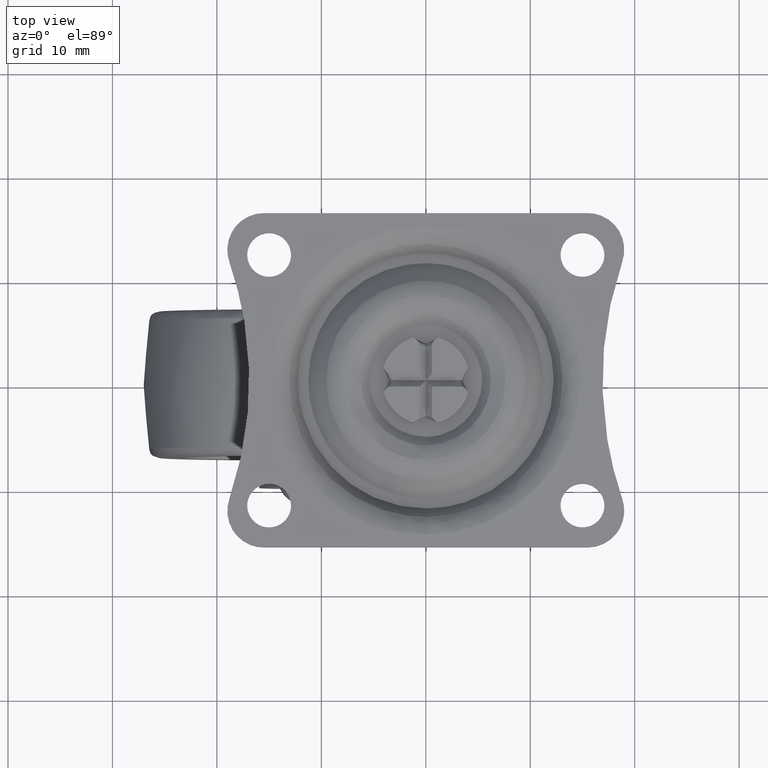
[diagram: clean part render]
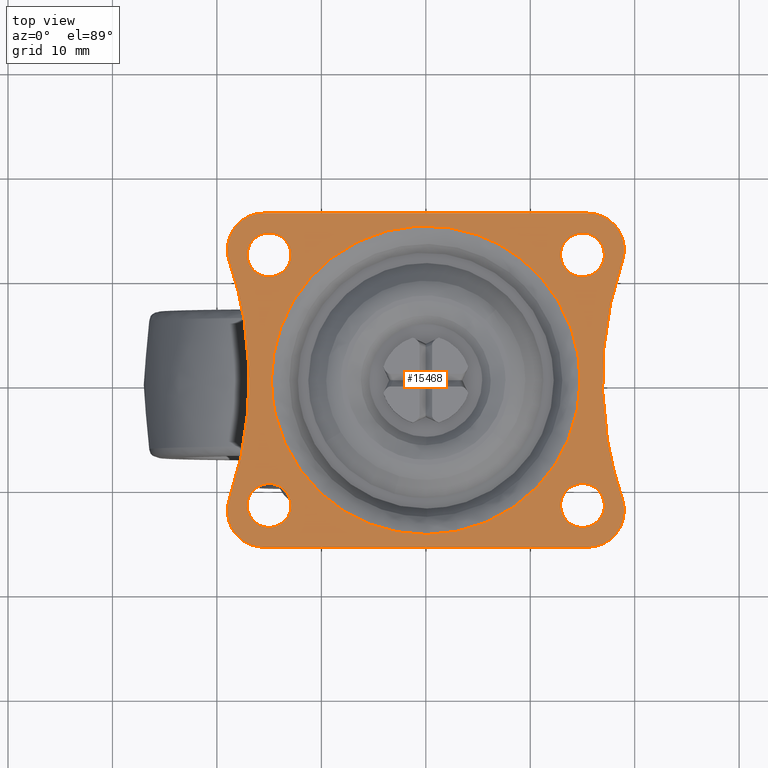
[diagram: same view with one face highlighted and labeled with its STEP entity id]
A machine part, top view. The second image highlights one B-rep face of the part: STEP entity #15468.
In plain terms, the highlighted face is a freeform B-spline surface patch.
Its self-contained STEP definition (entity closure, byte-faithful):
#9984=CARTESIAN_POINT('',(-15.247871892832739,9.914679994642487,1.419714E-017));
#9985=VERTEX_POINT('',#9984);
#9991=CARTESIAN_POINT('',(-12.900000000000000,11.999999999999821,0.0));
#9992=VERTEX_POINT('',#9991);
#9993=CARTESIAN_POINT('',(-15.247871892832734,9.914679994642487,1.419714E-017));
#9994=CARTESIAN_POINT('',(-15.124370651323128,9.899999999999821,0.0));
#9995=CARTESIAN_POINT('',(-15.0,9.899999999999821,0.0));
#9996=CARTESIAN_POINT('',(-12.900000000000002,9.899999999999821,0.0));
#9997=CARTESIAN_POINT('',(-12.900000000000000,11.999999999999821,0.0));
#10005=(BOUNDED_CURVE()B_SPLINE_CURVE(2,(#9993,#9994,#9995,#9996,#9997),.UNSPECIFIED.,.F.,.U.)B_SPLINE_CURVE_WITH_KNOTS((3,2,3),(0.229562473506965,0.250000000000000,0.500000000000000),.UNSPECIFIED.)CURVE()GEOMETRIC_REPRESENTATION_ITEM()RATIONAL_B_SPLINE_CURVE((0.956026754170874,0.976055948323479,1.0,0.707106781186548,1.0))REPRESENTATION_ITEM(''));
#10006=EDGE_CURVE('',#9985,#9992,#10005,.T.);
#10008=CARTESIAN_POINT('',(-14.871798066852261,14.096083076678120,1.040834E-017));
#10009=VERTEX_POINT('',#10008);
#10010=CARTESIAN_POINT('',(-12.900000000000000,11.999999999999821,0.0));
#10011=CARTESIAN_POINT('',(-12.900000000000002,13.975482740266576,0.0));
#10012=CARTESIAN_POINT('',(-14.871798066852261,14.096083076678122,1.040834E-017));
#10020=(BOUNDED_CURVE()B_SPLINE_CURVE(2,(#10010,#10011,#10012),.UNSPECIFIED.,.F.,.U.)B_SPLINE_CURVE_WITH_KNOTS((3,3),(0.500000000000000,0.739332962221464),.UNSPECIFIED.)CURVE()GEOMETRIC_REPRESENTATION_ITEM()RATIONAL_B_SPLINE_CURVE((1.0,0.719603993307189,0.976072041629256))REPRESENTATION_ITEM(''));
#10021=EDGE_CURVE('',#9992,#10009,#10020,.T.);
#10095=CARTESIAN_POINT('',(-17.100000000000001,11.999999999999821,0.0));
#10096=VERTEX_POINT('',#10095);
#10097=CARTESIAN_POINT('',(-14.871798066852257,14.096083076678120,1.040834E-017));
#10098=CARTESIAN_POINT('',(-14.935839196948066,14.099999999999818,0.0));
#10099=CARTESIAN_POINT('',(-15.0,14.099999999999820,0.0));
#10100=CARTESIAN_POINT('',(-17.099999999999994,14.099999999999818,0.0));
#10101=CARTESIAN_POINT('',(-17.100000000000001,11.999999999999821,0.0));
#10109=(BOUNDED_CURVE()B_SPLINE_CURVE(2,(#10097,#10098,#10099,#10100,#10101),.UNSPECIFIED.,.F.,.U.)B_SPLINE_CURVE_WITH_KNOTS((3,2,3),(0.739332962221464,0.750000000000000,1.0),.UNSPECIFIED.)CURVE()GEOMETRIC_REPRESENTATION_ITEM()RATIONAL_B_SPLINE_CURVE((0.976072041629257,0.987502787879360,1.0,0.707106781186548,1.0))REPRESENTATION_ITEM(''));
#10110=EDGE_CURVE('',#10009,#10096,#10109,.T.);
#10112=CARTESIAN_POINT('',(-17.100000000000001,11.999999999999821,0.0));
#10113=CARTESIAN_POINT('',(-17.100000000000001,10.134833495598409,0.0));
#10114=CARTESIAN_POINT('',(-15.247871892832741,9.914679994642487,1.419714E-017));
#10122=(BOUNDED_CURVE()B_SPLINE_CURVE(2,(#10112,#10113,#10114),.UNSPECIFIED.,.F.,.U.)B_SPLINE_CURVE_WITH_KNOTS((3,3),(0.0,0.229562473506965),.UNSPECIFIED.)CURVE()GEOMETRIC_REPRESENTATION_ITEM()RATIONAL_B_SPLINE_CURVE((1.0,0.731050832863068,0.956026754170874))REPRESENTATION_ITEM(''));
#10123=EDGE_CURVE('',#10096,#9985,#10122,.T.);
#10170=CARTESIAN_POINT('',(-15.247871892832739,-14.085320005357341,1.419714E-017));
#10171=VERTEX_POINT('',#10170);
#10177=CARTESIAN_POINT('',(-12.900000000000000,-12.0,0.0));
#10178=VERTEX_POINT('',#10177);
#10179=CARTESIAN_POINT('',(-15.247871892832736,-14.085320005357335,1.419714E-017));
#10180=CARTESIAN_POINT('',(-15.124370651323130,-14.099999999999996,0.0));
#10181=CARTESIAN_POINT('',(-15.0,-14.100000000000000,0.0));
#10182=CARTESIAN_POINT('',(-12.900000000000002,-14.100000000000000,0.0));
#10183=CARTESIAN_POINT('',(-12.900000000000000,-12.0,0.0));
#10191=(BOUNDED_CURVE()B_SPLINE_CURVE(2,(#10179,#10180,#10181,#10182,#10183),.UNSPECIFIED.,.F.,.U.)B_SPLINE_CURVE_WITH_KNOTS((3,2,3),(0.229562473506965,0.250000000000000,0.500000000000000),.UNSPECIFIED.)CURVE()GEOMETRIC_REPRESENTATION_ITEM()RATIONAL_B_SPLINE_CURVE((0.956026754170874,0.976055948323479,1.0,0.707106781186548,1.0))REPRESENTATION_ITEM(''));
#10192=EDGE_CURVE('',#10171,#10178,#10191,.T.);
#10194=CARTESIAN_POINT('',(-14.871798066852261,-9.903916923321697,1.387779E-017));
#10195=VERTEX_POINT('',#10194);
#10196=CARTESIAN_POINT('',(-12.900000000000000,-12.0,0.0));
#10197=CARTESIAN_POINT('',(-12.900000000000002,-10.024517259733239,0.0));
#10198=CARTESIAN_POINT('',(-14.871798066852261,-9.903916923321697,1.387779E-017));
#10206=(BOUNDED_CURVE()B_SPLINE_CURVE(2,(#10196,#10197,#10198),.UNSPECIFIED.,.F.,.U.)B_SPLINE_CURVE_WITH_KNOTS((3,3),(0.500000000000000,0.739332962221464),.UNSPECIFIED.)CURVE()GEOMETRIC_REPRESENTATION_ITEM()RATIONAL_B_SPLINE_CURVE((1.0,0.719603993307189,0.976072041629256))REPRESENTATION_ITEM(''));
#10207=EDGE_CURVE('',#10178,#10195,#10206,.T.);
#10281=CARTESIAN_POINT('',(-17.100000000000001,-12.0,0.0));
#10282=VERTEX_POINT('',#10281);
#10283=CARTESIAN_POINT('',(-14.871798066852257,-9.903916923321697,1.387779E-017));
#10284=CARTESIAN_POINT('',(-14.935839196948066,-9.900000000000000,0.0));
#10285=CARTESIAN_POINT('',(-15.0,-9.900000000000000,0.0));
#10286=CARTESIAN_POINT('',(-17.099999999999994,-9.900000000000000,0.0));
#10287=CARTESIAN_POINT('',(-17.100000000000001,-12.0,0.0));
#10295=(BOUNDED_CURVE()B_SPLINE_CURVE(2,(#10283,#10284,#10285,#10286,#10287),.UNSPECIFIED.,.F.,.U.)B_SPLINE_CURVE_WITH_KNOTS((3,2,3),(0.739332962221464,0.750000000000000,1.0),.UNSPECIFIED.)CURVE()GEOMETRIC_REPRESENTATION_ITEM()RATIONAL_B_SPLINE_CURVE((0.976072041629257,0.987502787879360,1.0,0.707106781186548,1.0))REPRESENTATION_ITEM(''));
#10296=EDGE_CURVE('',#10195,#10282,#10295,.T.);
#10298=CARTESIAN_POINT('',(-17.100000000000001,-12.0,0.0));
#10299=CARTESIAN_POINT('',(-17.099999999999998,-13.865166504401410,0.0));
#10300=CARTESIAN_POINT('',(-15.247871892832743,-14.085320005357334,1.419714E-017));
#10308=(BOUNDED_CURVE()B_SPLINE_CURVE(2,(#10298,#10299,#10300),.UNSPECIFIED.,.F.,.U.)B_SPLINE_CURVE_WITH_KNOTS((3,3),(0.0,0.229562473506965),.UNSPECIFIED.)CURVE()GEOMETRIC_REPRESENTATION_ITEM()RATIONAL_B_SPLINE_CURVE((1.0,0.731050832863068,0.956026754170874))REPRESENTATION_ITEM(''));
#10309=EDGE_CURVE('',#10282,#10171,#10308,.T.);
#10356=CARTESIAN_POINT('',(14.752128107167060,-14.085320005357330,1.419714E-017));
#10357=VERTEX_POINT('',#10356);
#10363=CARTESIAN_POINT('',(17.099999999999799,-12.0,0.0));
#10364=VERTEX_POINT('',#10363);
#10365=CARTESIAN_POINT('',(14.752128107167056,-14.085320005357334,1.419714E-017));
#10366=CARTESIAN_POINT('',(14.875629348676672,-14.100000000000001,0.0));
#10367=CARTESIAN_POINT('',(14.999999999999799,-14.100000000000000,0.0));
#10368=CARTESIAN_POINT('',(17.099999999999795,-14.100000000000000,0.0));
#10369=CARTESIAN_POINT('',(17.099999999999799,-12.0,0.0));
#10377=(BOUNDED_CURVE()B_SPLINE_CURVE(2,(#10365,#10366,#10367,#10368,#10369),.UNSPECIFIED.,.F.,.U.)B_SPLINE_CURVE_WITH_KNOTS((3,2,3),(0.229562473506965,0.250000000000000,0.500000000000000),.UNSPECIFIED.)CURVE()GEOMETRIC_REPRESENTATION_ITEM()RATIONAL_B_SPLINE_CURVE((0.956026754170873,0.976055948323479,1.0,0.707106781186548,1.0))REPRESENTATION_ITEM(''));
#10378=EDGE_CURVE('',#10357,#10364,#10377,.T.);
#10380=CARTESIAN_POINT('',(15.128201933147540,-9.903916923321697,1.040834E-017));
#10381=VERTEX_POINT('',#10380);
#10382=CARTESIAN_POINT('',(17.099999999999799,-12.0,0.0));
#10383=CARTESIAN_POINT('',(17.099999999999799,-10.024517259733239,0.0));
#10384=CARTESIAN_POINT('',(15.128201933147540,-9.903916923321697,1.040834E-017));
#10392=(BOUNDED_CURVE()B_SPLINE_CURVE(2,(#10382,#10383,#10384),.UNSPECIFIED.,.F.,.U.)B_SPLINE_CURVE_WITH_KNOTS((3,3),(0.500000000000000,0.739332962221464),.UNSPECIFIED.)CURVE()GEOMETRIC_REPRESENTATION_ITEM()RATIONAL_B_SPLINE_CURVE((1.0,0.719603993307189,0.976072041629256))REPRESENTATION_ITEM(''));
#10393=EDGE_CURVE('',#10364,#10381,#10392,.T.);
#10467=CARTESIAN_POINT('',(12.899999999999800,-12.0,0.0));
#10468=VERTEX_POINT('',#10467);
#10469=CARTESIAN_POINT('',(15.128201933147542,-9.903916923321697,1.040834E-017));
#10470=CARTESIAN_POINT('',(15.064160803051726,-9.900000000000000,0.0));
#10471=CARTESIAN_POINT('',(14.999999999999799,-9.900000000000000,0.0));
#10472=CARTESIAN_POINT('',(12.899999999999800,-9.900000000000000,0.0));
#10473=CARTESIAN_POINT('',(12.899999999999800,-12.0,0.0));
#10481=(BOUNDED_CURVE()B_SPLINE_CURVE(2,(#10469,#10470,#10471,#10472,#10473),.UNSPECIFIED.,.F.,.U.)B_SPLINE_CURVE_WITH_KNOTS((3,2,3),(0.739332962221464,0.750000000000000,1.0),.UNSPECIFIED.)CURVE()GEOMETRIC_REPRESENTATION_ITEM()RATIONAL_B_SPLINE_CURVE((0.976072041629257,0.987502787879359,1.0,0.707106781186548,1.0))REPRESENTATION_ITEM(''));
#10482=EDGE_CURVE('',#10381,#10468,#10481,.T.);
#10484=CARTESIAN_POINT('',(12.899999999999800,-12.0,0.0));
#10485=CARTESIAN_POINT('',(12.899999999999800,-13.865166504401401,0.0));
#10486=CARTESIAN_POINT('',(14.752128107167056,-14.085320005357334,1.419714E-017));
#10494=(BOUNDED_CURVE()B_SPLINE_CURVE(2,(#10484,#10485,#10486),.UNSPECIFIED.,.F.,.U.)B_SPLINE_CURVE_WITH_KNOTS((3,3),(0.0,0.229562473506965),.UNSPECIFIED.)CURVE()GEOMETRIC_REPRESENTATION_ITEM()RATIONAL_B_SPLINE_CURVE((1.0,0.731050832863069,0.956026754170873))REPRESENTATION_ITEM(''));
#10495=EDGE_CURVE('',#10468,#10357,#10494,.T.);
#10542=CARTESIAN_POINT('',(14.752128107167060,9.914679994642487,1.419714E-017));
#10543=VERTEX_POINT('',#10542);
#10549=CARTESIAN_POINT('',(17.099999999999799,11.999999999999821,0.0));
#10550=VERTEX_POINT('',#10549);
#10551=CARTESIAN_POINT('',(14.752128107167056,9.914679994642487,1.419714E-017));
#10552=CARTESIAN_POINT('',(14.875629348676672,9.899999999999823,0.0));
#10553=CARTESIAN_POINT('',(14.999999999999799,9.899999999999821,0.0));
#10554=CARTESIAN_POINT('',(17.099999999999795,9.899999999999821,0.0));
#10555=CARTESIAN_POINT('',(17.099999999999799,11.999999999999821,0.0));
#10563=(BOUNDED_CURVE()B_SPLINE_CURVE(2,(#10551,#10552,#10553,#10554,#10555),.UNSPECIFIED.,.F.,.U.)B_SPLINE_CURVE_WITH_KNOTS((3,2,3),(0.229562473506965,0.250000000000000,0.500000000000000),.UNSPECIFIED.)CURVE()GEOMETRIC_REPRESENTATION_ITEM()RATIONAL_B_SPLINE_CURVE((0.956026754170873,0.976055948323479,1.0,0.707106781186548,1.0))REPRESENTATION_ITEM(''));
#10564=EDGE_CURVE('',#10543,#10550,#10563,.T.);
#10566=CARTESIAN_POINT('',(15.128201933147540,14.096083076678120,1.040834E-017));
#10567=VERTEX_POINT('',#10566);
#10568=CARTESIAN_POINT('',(17.099999999999799,11.999999999999821,0.0));
#10569=CARTESIAN_POINT('',(17.099999999999799,13.975482740266576,0.0));
#10570=CARTESIAN_POINT('',(15.128201933147540,14.096083076678122,1.040834E-017));
#10578=(BOUNDED_CURVE()B_SPLINE_CURVE(2,(#10568,#10569,#10570),.UNSPECIFIED.,.F.,.U.)B_SPLINE_CURVE_WITH_KNOTS((3,3),(0.500000000000000,0.739332962221464),.UNSPECIFIED.)CURVE()GEOMETRIC_REPRESENTATION_ITEM()RATIONAL_B_SPLINE_CURVE((1.0,0.719603993307189,0.976072041629256))REPRESENTATION_ITEM(''));
#10579=EDGE_CURVE('',#10550,#10567,#10578,.T.);
#10653=CARTESIAN_POINT('',(12.899999999999800,11.999999999999821,0.0));
#10654=VERTEX_POINT('',#10653);
#10655=CARTESIAN_POINT('',(15.128201933147539,14.096083076678120,1.040834E-017));
#10656=CARTESIAN_POINT('',(15.064160803051724,14.099999999999818,0.0));
#10657=CARTESIAN_POINT('',(14.999999999999799,14.099999999999820,0.0));
#10658=CARTESIAN_POINT('',(12.899999999999800,14.099999999999818,0.0));
#10659=CARTESIAN_POINT('',(12.899999999999800,11.999999999999821,0.0));
#10667=(BOUNDED_CURVE()B_SPLINE_CURVE(2,(#10655,#10656,#10657,#10658,#10659),.UNSPECIFIED.,.F.,.U.)B_SPLINE_CURVE_WITH_KNOTS((3,2,3),(0.739332962221464,0.750000000000000,1.0),.UNSPECIFIED.)CURVE()GEOMETRIC_REPRESENTATION_ITEM()RATIONAL_B_SPLINE_CURVE((0.976072041629257,0.987502787879360,1.0,0.707106781186548,1.0))REPRESENTATION_ITEM(''));
#10668=EDGE_CURVE('',#10567,#10654,#10667,.T.);
#10670=CARTESIAN_POINT('',(12.899999999999800,11.999999999999821,0.0));
#10671=CARTESIAN_POINT('',(12.899999999999800,10.134833495598416,0.0));
#10672=CARTESIAN_POINT('',(14.752128107167056,9.914679994642487,1.419714E-017));
#10680=(BOUNDED_CURVE()B_SPLINE_CURVE(2,(#10670,#10671,#10672),.UNSPECIFIED.,.F.,.U.)B_SPLINE_CURVE_WITH_KNOTS((3,3),(0.0,0.229562473506965),.UNSPECIFIED.)CURVE()GEOMETRIC_REPRESENTATION_ITEM()RATIONAL_B_SPLINE_CURVE((1.0,0.731050832863069,0.956026754170873))REPRESENTATION_ITEM(''));
#10681=EDGE_CURVE('',#10654,#10543,#10680,.T.);
#13487=CARTESIAN_POINT('',(-12.669085915007360,7.600321931101867,-3.355528E-016));
#13488=VERTEX_POINT('',#13487);
#13502=CARTESIAN_POINT('',(-14.773984952846421,0.0,0.0));
#13503=VERTEX_POINT('',#13502);
#13504=CARTESIAN_POINT('',(-14.773984952846421,0.0,0.0));
#13505=CARTESIAN_POINT('',(-14.773984952846417,4.091635458329924,0.0));
#13506=CARTESIAN_POINT('',(-12.669085915007361,7.600321931101867,-3.355528E-016));
#13514=(BOUNDED_CURVE()B_SPLINE_CURVE(2,(#13504,#13505,#13506),.UNSPECIFIED.,.F.,.U.)B_SPLINE_CURVE_WITH_KNOTS((3,3),(0.0,0.087839548341409),.UNSPECIFIED.)CURVE()GEOMETRIC_REPRESENTATION_ITEM()RATIONAL_B_SPLINE_CURVE((1.0,0.897089567788659,0.866495982657826))REPRESENTATION_ITEM(''));
#13515=EDGE_CURVE('',#13503,#13488,#13514,.T.);
#13517=CARTESIAN_POINT('',(14.773984952846421,0.0,0.0));
#13518=VERTEX_POINT('',#13517);
#13519=CARTESIAN_POINT('',(14.773984952846421,0.0,0.0));
#13520=CARTESIAN_POINT('',(14.773984952846421,-14.773984952846421,0.0));
#13521=CARTESIAN_POINT('',(0.0,-14.773984952846421,0.0));
#13522=CARTESIAN_POINT('',(-14.773984952846421,-14.773984952846421,0.0));
#13523=CARTESIAN_POINT('',(-14.773984952846421,0.0,0.0));
#13531=(BOUNDED_CURVE()B_SPLINE_CURVE(2,(#13519,#13520,#13521,#13522,#13523),.UNSPECIFIED.,.F.,.U.)B_SPLINE_CURVE_WITH_KNOTS((3,2,3),(0.500000000000000,0.750000000000000,1.0),.UNSPECIFIED.)CURVE()GEOMETRIC_REPRESENTATION_ITEM()RATIONAL_B_SPLINE_CURVE((1.0,0.707106781186548,1.0,0.707106781186548,1.0))REPRESENTATION_ITEM(''));
#13532=EDGE_CURVE('',#13518,#13503,#13531,.T.);
#13534=CARTESIAN_POINT('',(9.012314474081663,11.706785177680040,-3.187924E-016));
#13535=VERTEX_POINT('',#13534);
#13536=CARTESIAN_POINT('',(9.012314474081663,11.706785177680040,-3.187924E-016));
#13537=CARTESIAN_POINT('',(14.773984952846421,7.271239000210040,0.0));
#13538=CARTESIAN_POINT('',(14.773984952846421,0.0,0.0));
#13546=(BOUNDED_CURVE()B_SPLINE_CURVE(2,(#13536,#13537,#13538),.UNSPECIFIED.,.F.,.U.)B_SPLINE_CURVE_WITH_KNOTS((3,3),(0.355459593833967,0.500000000000000),.UNSPECIFIED.)CURVE()GEOMETRIC_REPRESENTATION_ITEM()RATIONAL_B_SPLINE_CURVE((0.857132100277674,0.830660380757707,1.0))REPRESENTATION_ITEM(''));
#13547=EDGE_CURVE('',#13535,#13518,#13546,.T.);
#13590=CARTESIAN_POINT('',(-12.669085915007360,7.600321931101868,-3.355528E-016));
#13591=CARTESIAN_POINT('',(-8.365527729983228,14.773984952846423,0.0));
#13592=CARTESIAN_POINT('',(0.0,14.773984952846421,0.0));
#13593=CARTESIAN_POINT('',(5.028093887606489,14.773984952846421,0.0));
#13594=CARTESIAN_POINT('',(9.012314474081663,11.706785177680040,-3.187924E-016));
#13602=(BOUNDED_CURVE()B_SPLINE_CURVE(2,(#13590,#13591,#13592,#13593,#13594),.UNSPECIFIED.,.F.,.U.)B_SPLINE_CURVE_WITH_KNOTS((3,2,3),(0.087839548341409,0.250000000000000,0.355459593833967),.UNSPECIFIED.)CURVE()GEOMETRIC_REPRESENTATION_ITEM()RATIONAL_B_SPLINE_CURVE((0.866495982657826,0.810017213397888,1.0,0.876446400428841,0.857132100277674))REPRESENTATION_ITEM(''));
#13603=EDGE_CURVE('',#13488,#13535,#13602,.T.);
#15089=CARTESIAN_POINT('',(-15.500000000000000,16.0,0.0));
#15090=VERTEX_POINT('',#15089);
#15096=CARTESIAN_POINT('',(15.500000000000000,16.0,0.0));
#15097=VERTEX_POINT('',#15096);
#15098=CARTESIAN_POINT('',(15.500000000000000,16.0,0.0));
#15099=CARTESIAN_POINT('',(-15.500000000000000,16.0,0.0));
#15100=QUASI_UNIFORM_CURVE('',1,(#15098,#15099),.UNSPECIFIED.,.F.,.U.);
#15101=EDGE_CURVE('',#15097,#15090,#15100,.T.);
#15126=CARTESIAN_POINT('',(-18.810389867312551,11.363637854204940,0.0));
#15127=VERTEX_POINT('',#15126);
#15133=CARTESIAN_POINT('',(-15.500000000000000,16.0,0.0));
#15134=CARTESIAN_POINT('',(-17.301572840494469,16.000000000000004,0.0));
#15135=CARTESIAN_POINT('',(-18.348444093736301,14.533805852302221,0.0));
#15136=CARTESIAN_POINT('',(-19.395315346978130,13.067611704604442,0.0));
#15137=CARTESIAN_POINT('',(-18.810389867312551,11.363637854204940,0.0));
#15145=(BOUNDED_CURVE()B_SPLINE_CURVE(2,(#15133,#15134,#15135,#15136,#15137),.UNSPECIFIED.,.F.,.U.)B_SPLINE_CURVE_WITH_KNOTS((3,2,3),(0.0,0.500000000000000,1.0),.UNSPECIFIED.)CURVE()GEOMETRIC_REPRESENTATION_ITEM()RATIONAL_B_SPLINE_CURVE((1.0,0.889125240439181,1.0,0.889125240439181,1.0))REPRESENTATION_ITEM(''));
#15146=EDGE_CURVE('',#15090,#15127,#15145,.T.);
#15166=CARTESIAN_POINT('',(-18.810389470647099,-11.363636698661100,0.0));
#15167=VERTEX_POINT('',#15166);
#15173=CARTESIAN_POINT('',(-18.810389470647120,-11.363636698661089,0.0));
#15174=CARTESIAN_POINT('',(-14.909574352009507,0.000000645853931,0.0));
#15175=CARTESIAN_POINT('',(-18.810389867312558,11.363637854204930,0.0));
#15183=(BOUNDED_CURVE()B_SPLINE_CURVE(2,(#15173,#15174,#15175),.UNSPECIFIED.,.F.,.U.)CURVE()GEOMETRIC_REPRESENTATION_ITEM()QUASI_UNIFORM_CURVE()RATIONAL_B_SPLINE_CURVE((1.0,0.945825581714721,1.0))REPRESENTATION_ITEM(''));
#15184=EDGE_CURVE('',#15167,#15127,#15183,.T.);
#15206=CARTESIAN_POINT('',(-15.500003054326401,-15.999999999998749,0.0));
#15207=VERTEX_POINT('',#15206);
#15213=CARTESIAN_POINT('',(-18.810389470647099,-11.363636698661100,0.0));
#15214=CARTESIAN_POINT('',(-19.395315356950572,-13.067609796742481,0.0));
#15215=CARTESIAN_POINT('',(-18.348445336117098,-14.533804112286330,0.0));
#15216=CARTESIAN_POINT('',(-17.301575315283618,-15.999998427830175,0.0));
#15217=CARTESIAN_POINT('',(-15.500003054326401,-15.999999999998749,0.0));
#15225=(BOUNDED_CURVE()B_SPLINE_CURVE(2,(#15213,#15214,#15215,#15216,#15217),.UNSPECIFIED.,.F.,.U.)B_SPLINE_CURVE_WITH_KNOTS((3,2,3),(0.0,0.500000000000000,1.0),.UNSPECIFIED.)CURVE()GEOMETRIC_REPRESENTATION_ITEM()RATIONAL_B_SPLINE_CURVE((1.0,0.889125300347258,1.0,0.889125300347258,1.0))REPRESENTATION_ITEM(''));
#15226=EDGE_CURVE('',#15167,#15207,#15225,.T.);
#15238=CARTESIAN_POINT('',(15.500000000000000,-16.0,0.0));
#15239=VERTEX_POINT('',#15238);
#15245=CARTESIAN_POINT('',(-15.500003054326401,-15.999999999998749,0.0));
#15246=CARTESIAN_POINT('',(15.500000000000000,-16.0,0.0));
#15247=QUASI_UNIFORM_CURVE('',1,(#15245,#15246),.UNSPECIFIED.,.F.,.U.);
#15248=EDGE_CURVE('',#15207,#15239,#15247,.T.);
#15269=CARTESIAN_POINT('',(18.810389272314051,-11.363636120889200,0.0));
#15270=VERTEX_POINT('',#15269);
#15276=CARTESIAN_POINT('',(15.500000000000000,-16.0,0.0));
#15277=CARTESIAN_POINT('',(17.301573420030991,-16.0,0.0));
#15278=CARTESIAN_POINT('',(18.348444626185309,-14.533805106581280,0.0));
#15279=CARTESIAN_POINT('',(19.395315832339620,-13.067610213162553,0.0));
#15280=CARTESIAN_POINT('',(18.810389272314090,-11.363636120889190,0.0));
#15288=(BOUNDED_CURVE()B_SPLINE_CURVE(2,(#15276,#15277,#15278,#15279,#15280),.UNSPECIFIED.,.F.,.U.)B_SPLINE_CURVE_WITH_KNOTS((3,2,3),(0.0,0.500000000000000,1.0),.UNSPECIFIED.)CURVE()GEOMETRIC_REPRESENTATION_ITEM()RATIONAL_B_SPLINE_CURVE((1.0,0.889125180531104,1.0,0.889125180531104,1.0))REPRESENTATION_ITEM(''));
#15289=EDGE_CURVE('',#15239,#15270,#15288,.T.);
#15309=CARTESIAN_POINT('',(18.810389366068151,11.363636394008060,0.0));
#15310=VERTEX_POINT('',#15309);
#15316=CARTESIAN_POINT('',(18.810389366068151,11.363636394008070,0.0));
#15317=CARTESIAN_POINT('',(14.909574743015606,0.000000152651005,0.0));
#15318=CARTESIAN_POINT('',(18.810389272314051,-11.363636120889200,0.0));
#15326=(BOUNDED_CURVE()B_SPLINE_CURVE(2,(#15316,#15317,#15318),.UNSPECIFIED.,.F.,.U.)CURVE()GEOMETRIC_REPRESENTATION_ITEM()QUASI_UNIFORM_CURVE()RATIONAL_B_SPLINE_CURVE((1.0,0.945825591708681,1.0))REPRESENTATION_ITEM(''));
#15327=EDGE_CURVE('',#15310,#15270,#15326,.T.);
#15350=CARTESIAN_POINT('',(18.810389366068140,11.363636394008060,0.0));
#15351=CARTESIAN_POINT('',(19.395315755861148,13.067610448169352,0.0));
#15352=CARTESIAN_POINT('',(18.348444542287229,14.533805224084681,0.0));
#15353=CARTESIAN_POINT('',(17.301573328713303,16.000000000000004,0.0));
#15354=CARTESIAN_POINT('',(15.500000000000000,16.0,0.0));
#15362=(BOUNDED_CURVE()B_SPLINE_CURVE(2,(#15350,#15351,#15352,#15353,#15354),.UNSPECIFIED.,.F.,.U.)B_SPLINE_CURVE_WITH_KNOTS((3,2,3),(0.0,0.500000000000000,1.0),.UNSPECIFIED.)CURVE()GEOMETRIC_REPRESENTATION_ITEM()RATIONAL_B_SPLINE_CURVE((1.0,0.889125189970832,1.0,0.889125189970832,1.0))REPRESENTATION_ITEM(''));
#15363=EDGE_CURVE('',#15310,#15097,#15362,.T.);
#15423=CARTESIAN_POINT('',(-20.897734951488399,17.598399937977788,0.0));
#15424=CARTESIAN_POINT('',(20.897735899758210,17.598399937977788,0.0));
#15425=CARTESIAN_POINT('',(-20.897734951488399,-17.598400796284679,0.0));
#15426=CARTESIAN_POINT('',(20.897735899758210,-17.598400796284679,0.0));
#15427=B_SPLINE_SURFACE_WITH_KNOTS('',1,1,((#15423,#15425),(#15424,#15426)),.UNSPECIFIED.,.F.,.F.,.U.,(2,2),(2,2),(0.0,41.795470851246613),(0.0,35.196800734262467),.UNSPECIFIED.);
#15428=ORIENTED_EDGE('',*,*,#15327,.F.);
#15429=ORIENTED_EDGE('',*,*,#15363,.T.);
#15430=ORIENTED_EDGE('',*,*,#15101,.T.);
#15431=ORIENTED_EDGE('',*,*,#15146,.T.);
#15432=ORIENTED_EDGE('',*,*,#15184,.F.);
#15433=ORIENTED_EDGE('',*,*,#15226,.T.);
#15434=ORIENTED_EDGE('',*,*,#15248,.T.);
#15435=ORIENTED_EDGE('',*,*,#15289,.T.);
#15436=EDGE_LOOP('',(#15428,#15429,#15430,#15431,#15432,#15433,#15434,#15435));
#15437=FACE_OUTER_BOUND('',#15436,.T.);
#15438=ORIENTED_EDGE('',*,*,#13532,.T.);
#15439=ORIENTED_EDGE('',*,*,#13515,.T.);
#15440=ORIENTED_EDGE('',*,*,#13603,.T.);
#15441=ORIENTED_EDGE('',*,*,#13547,.T.);
#15442=EDGE_LOOP('',(#15438,#15439,#15440,#15441));
#15443=FACE_BOUND('',#15442,.T.);
#15444=ORIENTED_EDGE('',*,*,#10579,.F.);
#15445=ORIENTED_EDGE('',*,*,#10564,.F.);
#15446=ORIENTED_EDGE('',*,*,#10681,.F.);
#15447=ORIENTED_EDGE('',*,*,#10668,.F.);
#15448=EDGE_LOOP('',(#15444,#15445,#15446,#15447));
#15449=FACE_BOUND('',#15448,.T.);
#15450=ORIENTED_EDGE('',*,*,#10393,.F.);
#15451=ORIENTED_EDGE('',*,*,#10378,.F.);
#15452=ORIENTED_EDGE('',*,*,#10495,.F.);
#15453=ORIENTED_EDGE('',*,*,#10482,.F.);
#15454=EDGE_LOOP('',(#15450,#15451,#15452,#15453));
#15455=FACE_BOUND('',#15454,.T.);
#15456=ORIENTED_EDGE('',*,*,#10207,.F.);
#15457=ORIENTED_EDGE('',*,*,#10192,.F.);
#15458=ORIENTED_EDGE('',*,*,#10309,.F.);
#15459=ORIENTED_EDGE('',*,*,#10296,.F.);
#15460=EDGE_LOOP('',(#15456,#15457,#15458,#15459));
#15461=FACE_BOUND('',#15460,.T.);
#15462=ORIENTED_EDGE('',*,*,#10021,.F.);
#15463=ORIENTED_EDGE('',*,*,#10006,.F.);
#15464=ORIENTED_EDGE('',*,*,#10123,.F.);
#15465=ORIENTED_EDGE('',*,*,#10110,.F.);
#15466=EDGE_LOOP('',(#15462,#15463,#15464,#15465));
#15467=FACE_BOUND('',#15466,.T.);
#15468=ADVANCED_FACE('',(#15437,#15443,#15449,#15455,#15461,#15467),#15427,.F.);